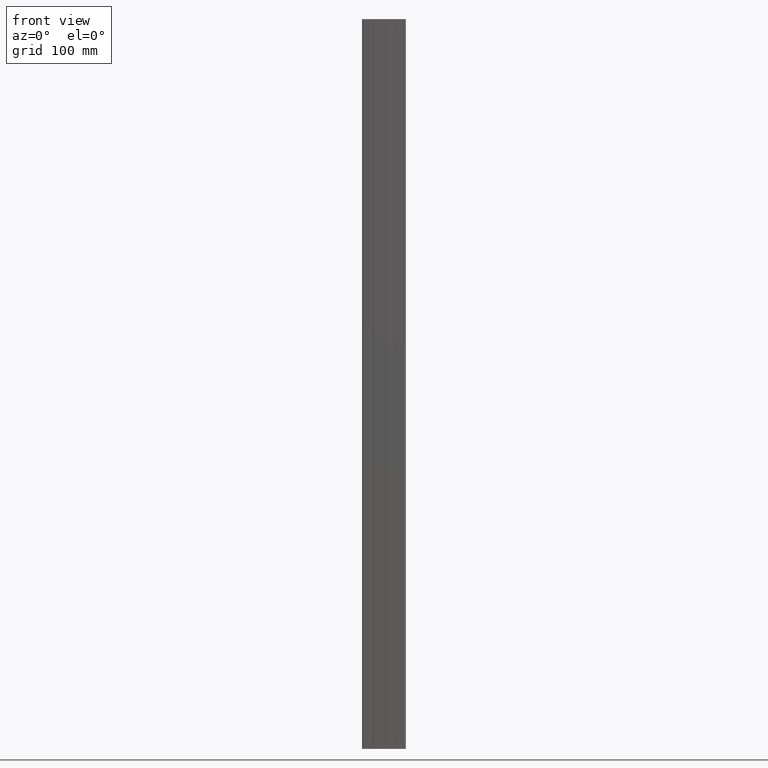
[diagram: clean part render]
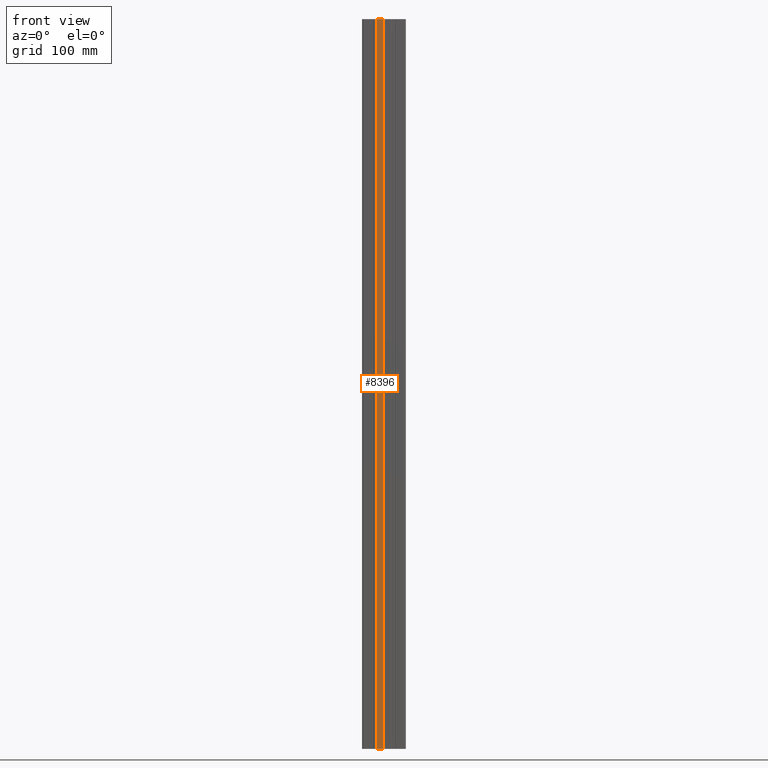
[diagram: same view with one face highlighted and labeled with its STEP entity id]
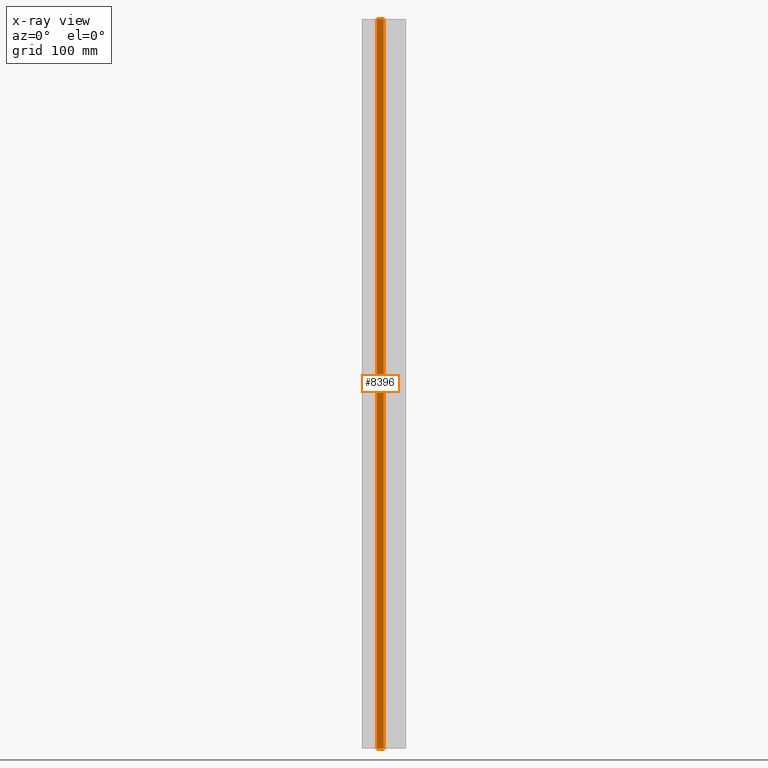
[diagram: x-ray of the same camera — body ghosted, the highlighted face saturated]
A machine part, front view. The second image highlights one B-rep face of the part: STEP entity #8396.
The next image is the same camera in x-ray: the body ghosted, the highlighted face saturated — about 0% of this face is hidden behind the body in this view.
In plain terms, the highlighted planar face has unit normal (-0, -1, 0).
Its self-contained STEP definition (entity closure, byte-faithful):
#132 = DIRECTION ( 'NONE',  ( -1.591489427501657157E-16, -1.000000000000000000, 0.0000000000000000000 ) ) ;
#233 = VECTOR ( 'NONE', #9160, 1000.000000000000000 ) ;
#980 = EDGE_CURVE ( 'NONE', #2483, #9453, #1335, .T. ) ;
#1335 = LINE ( 'NONE', #2315, #1571 ) ;
#1571 = VECTOR ( 'NONE', #6777, 1000.000000000000000 ) ;
#1705 = LINE ( 'NONE', #9396, #233 ) ;
#1886 = DIRECTION ( 'NONE',  ( 0.0000000000000000000, 0.0000000000000000000, 1.000000000000000000 ) ) ;
#2074 = VERTEX_POINT ( 'NONE', #3824 ) ;
#2315 = CARTESIAN_POINT ( 'NONE',  ( 4.100000000000011191, -15.00000000000000000, -1000.000000000000000 ) ) ;
#2333 = CARTESIAN_POINT ( 'NONE',  ( 4.100000000000011191, -15.00000000000000000, -1021.213203435596256 ) ) ;
#2483 = VERTEX_POINT ( 'NONE', #3346 ) ;
#2506 = LINE ( 'NONE', #5459, #3539 ) ;
#2917 = ORIENTED_EDGE ( 'NONE', *, *, #5103, .T. ) ;
#3050 = EDGE_LOOP ( 'NONE', ( #3089, #5413, #2917, #6636 ) ) ;
#3089 = ORIENTED_EDGE ( 'NONE', *, *, #980, .T. ) ;
#3346 = CARTESIAN_POINT ( 'NONE',  ( 5.150000000000020783, -15.00000000000000000, -1000.000000000000000 ) ) ;
#3539 = VECTOR ( 'NONE', #7672, 1000.000000000000000 ) ;
#3824 = CARTESIAN_POINT ( 'NONE',  ( 14.66230473516046295, -15.00000000000000178, 0.0000000000000000000 ) ) ;
#3883 = VECTOR ( 'NONE', #1886, 1000.000000000000000 ) ;
#4160 = EDGE_CURVE ( 'NONE', #2483, #7979, #6344, .T. ) ;
#4632 = FACE_OUTER_BOUND ( 'NONE', #3050, .T. ) ;
#5103 = EDGE_CURVE ( 'NONE', #2074, #7979, #2506, .T. ) ;
#5265 = AXIS2_PLACEMENT_3D ( 'NONE', #2333, #132, #6891 ) ;
#5413 = ORIENTED_EDGE ( 'NONE', *, *, #9707, .F. ) ;
#5459 = CARTESIAN_POINT ( 'NONE',  ( 4.100000000000011191, -15.00000000000000000, 0.0000000000000000000 ) ) ;
#5779 = CARTESIAN_POINT ( 'NONE',  ( 14.66230473516046295, -15.00000000000000178, -1000.000000000000000 ) ) ;
#6344 = LINE ( 'NONE', #7732, #3883 ) ;
#6636 = ORIENTED_EDGE ( 'NONE', *, *, #4160, .F. ) ;
#6777 = DIRECTION ( 'NONE',  ( 1.000000000000000000, -1.591489427501657157E-16, 0.0000000000000000000 ) ) ;
#6891 = DIRECTION ( 'NONE',  ( -1.000000000000000000, 1.591489427501657157E-16, 0.0000000000000000000 ) ) ;
#7672 = DIRECTION ( 'NONE',  ( -1.000000000000000000, 1.591489427501657157E-16, -0.0000000000000000000 ) ) ;
#7732 = CARTESIAN_POINT ( 'NONE',  ( 5.150000000000020783, -15.00000000000000000, 0.0000000000000000000 ) ) ;
#7979 = VERTEX_POINT ( 'NONE', #8348 ) ;
#8348 = CARTESIAN_POINT ( 'NONE',  ( 5.150000000000020783, -15.00000000000000000, 0.0000000000000000000 ) ) ;
#8396 = ADVANCED_FACE ( 'NONE', ( #4632 ), #8956, .T. ) ;
#8956 = PLANE ( 'NONE',  #5265 ) ;
#9160 = DIRECTION ( 'NONE',  ( -0.0000000000000000000, -0.0000000000000000000, -1.000000000000000000 ) ) ;
#9396 = CARTESIAN_POINT ( 'NONE',  ( 14.66230473516046295, -15.00000000000000178, -1000.000000000000000 ) ) ;
#9453 = VERTEX_POINT ( 'NONE', #5779 ) ;
#9707 = EDGE_CURVE ( 'NONE', #2074, #9453, #1705, .T. ) ;